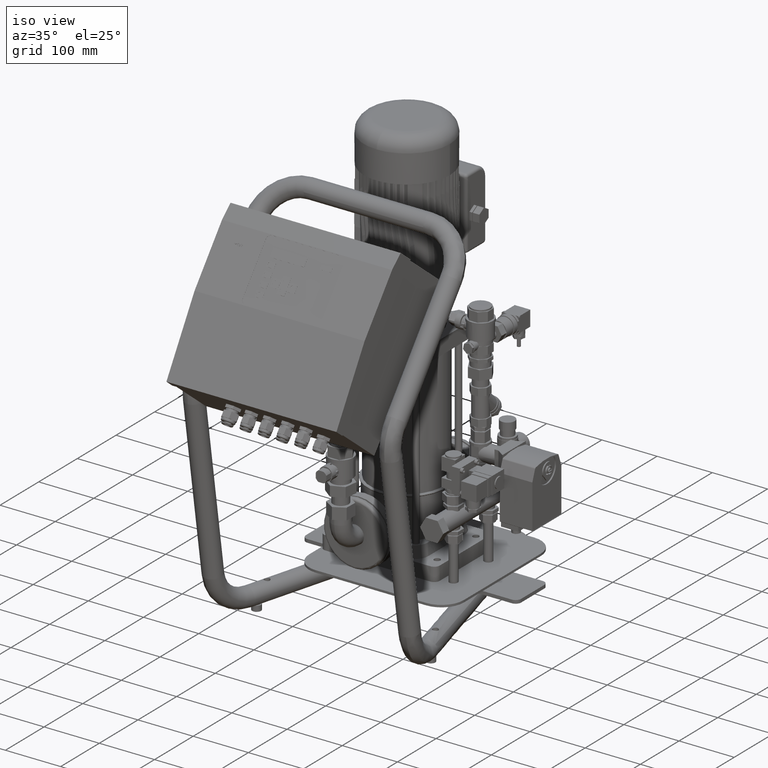
[diagram: clean part render]
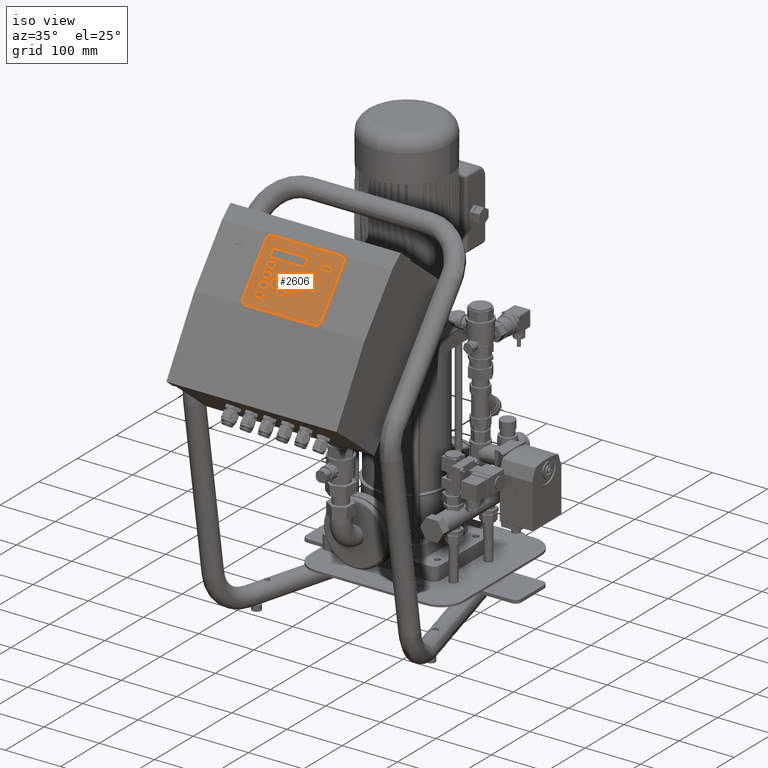
[diagram: same view with one face highlighted and labeled with its STEP entity id]
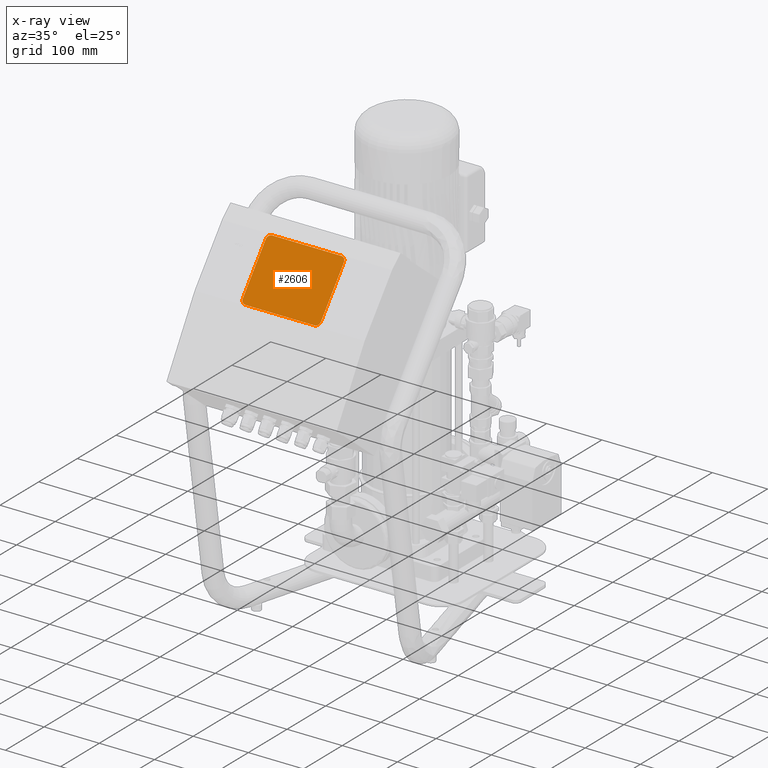
[diagram: x-ray of the same camera — body ghosted, the highlighted face saturated]
A machine part, iso view. The second image highlights one B-rep face of the part: STEP entity #2606.
The next image is the same camera in x-ray: the body ghosted, the highlighted face saturated — about 0% of this face is hidden behind the body in this view.
In plain terms, the highlighted planar face has unit normal (0, -0.7821, 0.6232).
Its self-contained STEP definition (entity closure, byte-faithful):
#2504=CARTESIAN_POINT('',(-62.750000000000078,-306.014838350242830,674.403016700827610));
#2505=VERTEX_POINT('',#2504);
#2523=CARTESIAN_POINT('',(-70.750000000000071,-311.000417181997820,668.146499801438270));
#2524=VERTEX_POINT('',#2523);
#2531=CARTESIAN_POINT('',(-62.750000000000114,-311.000417181997820,668.146499801438270));
#2532=DIRECTION('',(0.0,-0.782064612423729,0.623197353969449));
#2533=DIRECTION('',(1.0,0.0,0.0));
#2534=AXIS2_PLACEMENT_3D('',#2531,#2532,#2533);
#2535=CIRCLE('',#2534,7.999999999999957);
#2536=EDGE_CURVE('',#2505,#2524,#2535,.T.);
#2541=CARTESIAN_POINT('',(62.749999999999972,-370.515764486081030,593.459329314971680));
#2542=DIRECTION('',(1.199194E-017,-0.782064612423729,0.623197353969449));
#2543=DIRECTION('',(1.0,0.0,0.0));
#2544=AXIS2_PLACEMENT_3D('',#2541,#2542,#2543);
#2545=PLANE('',#2544);
#2546=ORIENTED_EDGE('',*,*,#2536,.T.);
#2547=CARTESIAN_POINT('',(-70.750000000000028,-370.515764486081030,593.459329314971680));
#2548=VERTEX_POINT('',#2547);
#2549=CARTESIAN_POINT('',(-70.750000000000071,-311.000417181997820,668.146499801438270));
#2550=DIRECTION('',(4.464143E-016,-0.623197353969452,-0.782064612423727));
#2551=VECTOR('',#2550,95.500000000000881);
#2552=LINE('',#2549,#2551);
#2553=EDGE_CURVE('',#2524,#2548,#2552,.T.);
#2554=ORIENTED_EDGE('',*,*,#2553,.T.);
#2555=CARTESIAN_POINT('',(-62.750000000000028,-375.501343317836020,587.202812415582120));
#2556=VERTEX_POINT('',#2555);
#2557=CARTESIAN_POINT('',(-62.750000000000092,-370.515764486079890,593.459329314971680));
#2558=DIRECTION('',(0.0,-0.782064612423729,0.623197353969449));
#2559=DIRECTION('',(1.0,0.0,0.0));
#2560=AXIS2_PLACEMENT_3D('',#2557,#2558,#2559);
#2561=CIRCLE('',#2560,7.999999999999957);
#2562=EDGE_CURVE('',#2548,#2556,#2561,.T.);
#2563=ORIENTED_EDGE('',*,*,#2562,.T.);
#2564=CARTESIAN_POINT('',(62.750000000000028,-375.501343317835560,587.202812415582120));
#2565=VERTEX_POINT('',#2564);
#2566=CARTESIAN_POINT('',(-62.750000000000028,-375.501343317836020,587.202812415582120));
#2567=DIRECTION('',(1.0,0.0,0.0));
#2568=VECTOR('',#2567,125.500000000000060);
#2569=LINE('',#2566,#2568);
#2570=EDGE_CURVE('',#2556,#2565,#2569,.T.);
#2571=ORIENTED_EDGE('',*,*,#2570,.T.);
#2572=CARTESIAN_POINT('',(70.749999999999972,-370.515764486081030,593.459329314971680));
#2573=VERTEX_POINT('',#2572);
#2574=CARTESIAN_POINT('',(62.749999999999972,-370.515764486081030,593.459329314971680));
#2575=DIRECTION('',(0.0,-0.782064612423729,0.623197353969449));
#2576=DIRECTION('',(1.0,0.0,0.0));
#2577=AXIS2_PLACEMENT_3D('',#2574,#2575,#2576);
#2578=CIRCLE('',#2577,7.999999999999957);
#2579=EDGE_CURVE('',#2565,#2573,#2578,.T.);
#2580=ORIENTED_EDGE('',*,*,#2579,.T.);
#2581=CARTESIAN_POINT('',(70.749999999999972,-311.000417181997820,668.146499801438270));
#2582=VERTEX_POINT('',#2581);
#2583=CARTESIAN_POINT('',(70.749999999999972,-370.515764486081030,593.459329314971680));
#2584=DIRECTION('',(0.0,0.623197353969452,0.782064612423727));
#2585=VECTOR('',#2584,95.500000000000881);
#2586=LINE('',#2583,#2585);
#2587=EDGE_CURVE('',#2573,#2582,#2586,.T.);
#2588=ORIENTED_EDGE('',*,*,#2587,.T.);
#2589=CARTESIAN_POINT('',(62.749999999999972,-306.014838350242830,674.403016700827610));
#2590=VERTEX_POINT('',#2589);
#2591=CARTESIAN_POINT('',(62.749999999999972,-311.000417181997820,668.146499801438270));
#2592=DIRECTION('',(0.0,-0.782064612423729,0.623197353969449));
#2593=DIRECTION('',(1.0,0.0,0.0));
#2594=AXIS2_PLACEMENT_3D('',#2591,#2592,#2593);
#2595=CIRCLE('',#2594,7.999999999999957);
#2596=EDGE_CURVE('',#2582,#2590,#2595,.T.);
#2597=ORIENTED_EDGE('',*,*,#2596,.T.);
#2598=CARTESIAN_POINT('',(62.749999999999972,-306.014838350242830,674.403016700827610));
#2599=DIRECTION('',(-1.0,0.0,0.0));
#2600=VECTOR('',#2599,125.500000000000060);
#2601=LINE('',#2598,#2600);
#2602=EDGE_CURVE('',#2590,#2505,#2601,.T.);
#2603=ORIENTED_EDGE('',*,*,#2602,.T.);
#2604=EDGE_LOOP('',(#2546,#2554,#2563,#2571,#2580,#2588,#2597,#2603));
#2605=FACE_OUTER_BOUND('',#2604,.T.);
#2606=ADVANCED_FACE('',(#2605),#2545,.T.);